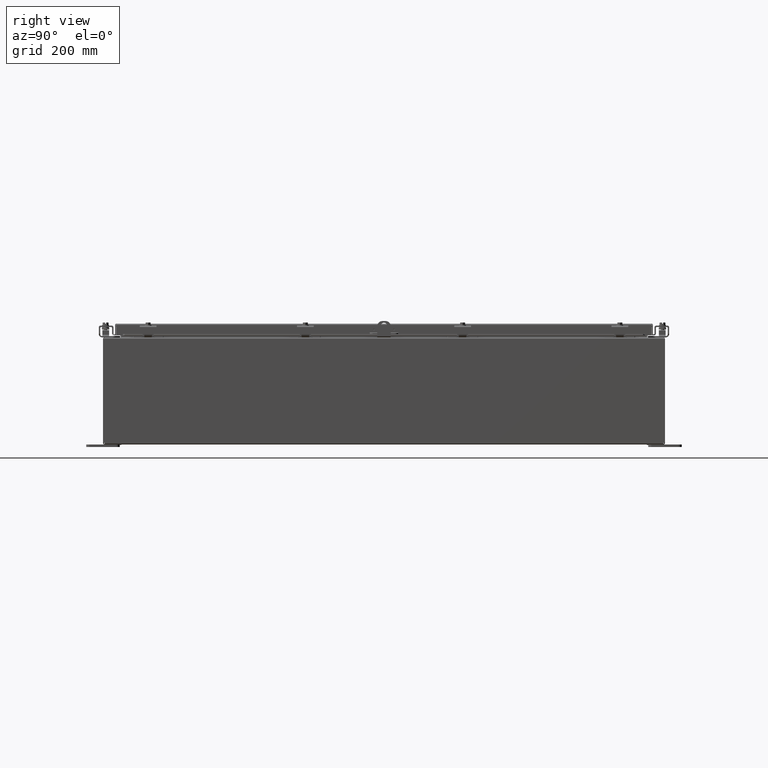
[diagram: clean part render]
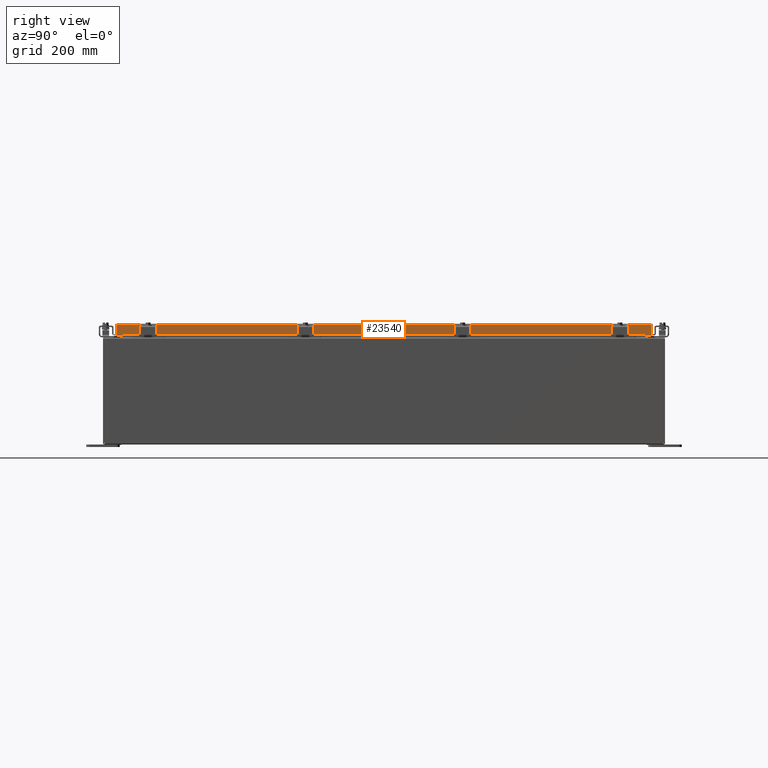
[diagram: same view with one face highlighted and labeled with its STEP entity id]
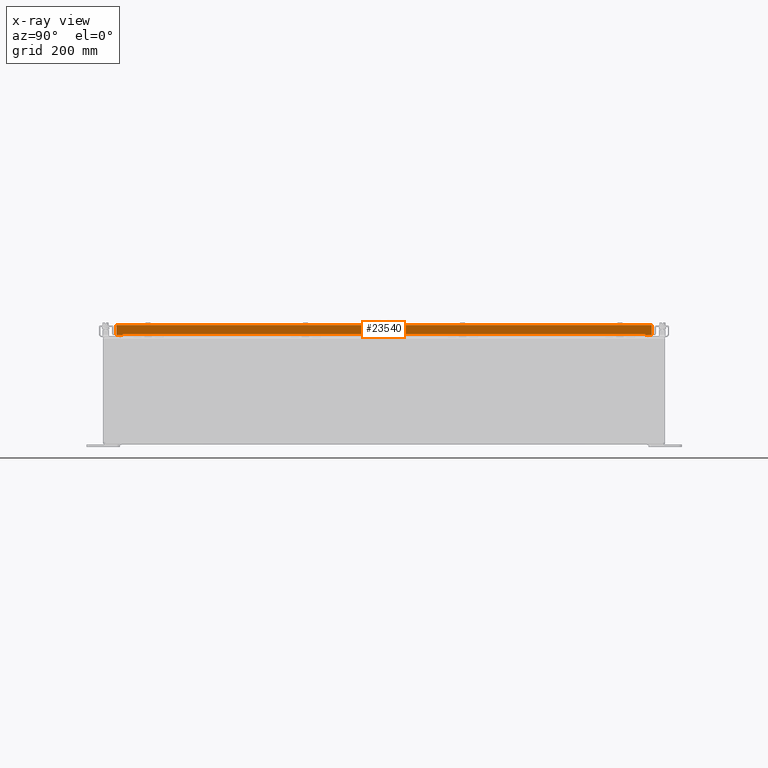
[diagram: x-ray of the same camera — body ghosted, the highlighted face saturated]
A machine part, right view. The second image highlights one B-rep face of the part: STEP entity #23540.
The next image is the same camera in x-ray: the body ghosted, the highlighted face saturated — about 0% of this face is hidden behind the body in this view.
In plain terms, the highlighted planar face has unit normal (-1, -0, -0).
Its self-contained STEP definition (entity closure, byte-faithful):
#619 = DIRECTION ( 'NONE',  ( 0.0000000000000000000, 0.0000000000000000000, -1.000000000000000000 ) ) ;
#758 = CARTESIAN_POINT ( 'NONE',  ( 14.18750000000000400, 0.8125000000000011100, 0.4975000000000010500 ) ) ;
#1664 = EDGE_CURVE ( 'NONE', #15552, #27541, #36145, .T. ) ;
#1940 = ORIENTED_EDGE ( 'NONE', *, *, #50707, .T. ) ;
#2739 = CARTESIAN_POINT ( 'NONE',  ( 14.18750000000000900, -0.8125000000000001100, 0.4975000000000010500 ) ) ;
#2927 = DIRECTION ( 'NONE',  ( 0.0000000000000000000, 1.000000000000000000, 0.0000000000000000000 ) ) ;
#3204 = VECTOR ( 'NONE', #38134, 39.37007874015748100 ) ;
#3389 = VECTOR ( 'NONE', #7504, 39.37007874015748100 ) ;
#3938 = EDGE_CURVE ( 'NONE', #18405, #5729, #57886, .T. ) ;
#4288 = EDGE_CURVE ( 'NONE', #18339, #14714, #46553, .T. ) ;
#4947 = CIRCLE ( 'NONE', #20583, 0.06249999999999995100 ) ;
#5308 = CARTESIAN_POINT ( 'NONE',  ( 14.18750000000000000, 19.50870145654396400, 0.7697499999999990500 ) ) ;
#5729 = VERTEX_POINT ( 'NONE', #25768 ) ;
#5731 = VECTOR ( 'NONE', #29632, 39.37007874015748100 ) ;
#5790 = CARTESIAN_POINT ( 'NONE',  ( 14.18750000000000400, 0.6875000000000011100, 0.4345000000000010500 ) ) ;
#5946 = DIRECTION ( 'NONE',  ( 0.0000000000000000000, 0.0000000000000000000, 1.000000000000000000 ) ) ;
#6151 = FACE_OUTER_BOUND ( 'NONE', #14471, .T. ) ;
#6536 = CARTESIAN_POINT ( 'NONE',  ( 14.18750000000000900, -19.50870145654396000, 0.7697500000000041500 ) ) ;
#6645 = CARTESIAN_POINT ( 'NONE',  ( 14.18750000000000000, 19.50870145654396400, 0.7695499999999990700 ) ) ;
#6816 = AXIS2_PLACEMENT_3D ( 'NONE', #34691, #32902, #30974 ) ;
#6976 = CARTESIAN_POINT ( 'NONE',  ( 14.18750000000000200, 19.50890145654397000, 0.8749999999999961100 ) ) ;
#7231 = LINE ( 'NONE', #24867, #5731 ) ;
#7504 = DIRECTION ( 'NONE',  ( 0.0000000000000000000, 0.0000000000000000000, -1.000000000000000000 ) ) ;
#8197 = LINE ( 'NONE', #19857, #57510 ) ;
#8470 = VECTOR ( 'NONE', #27757, 39.37007874015748100 ) ;
#8763 = LINE ( 'NONE', #10880, #55157 ) ;
#8839 = LINE ( 'NONE', #56352, #32627 ) ;
#9376 = VECTOR ( 'NONE', #12238, 39.37007874015748100 ) ;
#10880 = CARTESIAN_POINT ( 'NONE',  ( 14.18750000000000400, 0.6875000000000011100, 0.4345000000000010500 ) ) ;
#11109 = ORIENTED_EDGE ( 'NONE', *, *, #32572, .F. ) ;
#11599 = CARTESIAN_POINT ( 'NONE',  ( 14.18750000000000900, -19.50870145654396000, 0.7695500000000040600 ) ) ;
#11803 = EDGE_CURVE ( 'NONE', #49681, #18339, #43725, .T. ) ;
#11833 = VECTOR ( 'NONE', #50931, 39.37007874015748100 ) ;
#11841 = CARTESIAN_POINT ( 'NONE',  ( 14.18750000000000400, -0.8125000000000011100, 0.4345000000000010500 ) ) ;
#12210 = CARTESIAN_POINT ( 'NONE',  ( 14.18750000000000400, 0.6875000000000011100, 0.4975000000000010500 ) ) ;
#12238 = DIRECTION ( 'NONE',  ( 0.0000000000000000000, 0.0000000000000000000, -1.000000000000000000 ) ) ;
#12306 = EDGE_LOOP ( 'NONE', ( #31596, #19808, #50083, #27012 ) ) ;
#12476 = PLANE ( 'NONE',  #6816 ) ;
#12710 = LINE ( 'NONE', #11841, #25302 ) ;
#13018 = ORIENTED_EDGE ( 'NONE', *, *, #4288, .F. ) ;
#13542 = CARTESIAN_POINT ( 'NONE',  ( 14.18750000000000000, 20.00870145654396400, 0.8749999999999961100 ) ) ;
#14422 = ORIENTED_EDGE ( 'NONE', *, *, #21946, .T. ) ;
#14471 = EDGE_LOOP ( 'NONE', ( #28077, #11109, #43639, #29380, #13018, #36142, #23723, #55736, #24178, #1940, #17781, #18269 ) ) ;
#14714 = VERTEX_POINT ( 'NONE', #32790 ) ;
#14980 = CARTESIAN_POINT ( 'NONE',  ( 14.18750000000000000, 19.50890145654397000, 0.7695499999999990700 ) ) ;
#15372 = DIRECTION ( 'NONE',  ( -1.000000000000000000, 0.0000000000000000000, 0.0000000000000000000 ) ) ;
#15552 = VERTEX_POINT ( 'NONE', #26718 ) ;
#16372 = CARTESIAN_POINT ( 'NONE',  ( 14.18750000000000400, -0.6875000000000011100, 0.4975000000000010500 ) ) ;
#17175 = VERTEX_POINT ( 'NONE', #32969 ) ;
#17342 = CARTESIAN_POINT ( 'NONE',  ( 14.18750000000000000, 19.50870145654396400, 0.7697499999999981600 ) ) ;
#17781 = ORIENTED_EDGE ( 'NONE', *, *, #56773, .T. ) ;
#18106 = CARTESIAN_POINT ( 'NONE',  ( 14.18750000000000400, -0.7500000000000011100, 0.4345000000000010500 ) ) ;
#18269 = ORIENTED_EDGE ( 'NONE', *, *, #43579, .T. ) ;
#18315 = VECTOR ( 'NONE', #58538, 39.37007874015748100 ) ;
#18339 = VERTEX_POINT ( 'NONE', #13542 ) ;
#18405 = VERTEX_POINT ( 'NONE', #19078 ) ;
#18480 = CARTESIAN_POINT ( 'NONE',  ( 14.18750000000000400, 0.7500000000000001100, 0.4345000000000010500 ) ) ;
#19078 = CARTESIAN_POINT ( 'NONE',  ( 14.18750000000000900, -20.00870145654396400, 0.1052500000000015200 ) ) ;
#19353 = CARTESIAN_POINT ( 'NONE',  ( 14.18749999999999600, 20.00870145654396400, 0.8749999999999961100 ) ) ;
#19547 = DIRECTION ( 'NONE',  ( 0.0000000000000000000, -1.000000000000000000, 0.0000000000000000000 ) ) ;
#19787 = VECTOR ( 'NONE', #5946, 39.37007874015748100 ) ;
#19808 = ORIENTED_EDGE ( 'NONE', *, *, #22024, .T. ) ;
#19857 = CARTESIAN_POINT ( 'NONE',  ( 14.18750000000001200, -20.00870145654396400, 0.8750000000000041100 ) ) ;
#19891 = CARTESIAN_POINT ( 'NONE',  ( 14.18750000000000900, -0.6875000000000011100, 0.4975000000000010500 ) ) ;
#20429 = DIRECTION ( 'NONE',  ( 0.0000000000000000000, 0.0000000000000000000, 1.000000000000000000 ) ) ;
#20583 = AXIS2_PLACEMENT_3D ( 'NONE', #18106, #15372, #19547 ) ;
#20601 = EDGE_CURVE ( 'NONE', #37370, #39202, #21508, .T. ) ;
#21276 = LINE ( 'NONE', #6645, #19787 ) ;
#21450 = VERTEX_POINT ( 'NONE', #12210 ) ;
#21508 = LINE ( 'NONE', #43130, #32721 ) ;
#21584 = EDGE_CURVE ( 'NONE', #39202, #49438, #21276, .T. ) ;
#21890 = VERTEX_POINT ( 'NONE', #11599 ) ;
#21946 = EDGE_CURVE ( 'NONE', #52313, #17175, #4947, .T. ) ;
#22024 = EDGE_CURVE ( 'NONE', #21450, #15552, #48267, .T. ) ;
#23245 = DIRECTION ( 'NONE',  ( 0.0000000000000000000, -1.000000000000000000, 0.0000000000000000000 ) ) ;
#23540 = ADVANCED_FACE ( 'NONE', ( #6151, #44176, #31419 ), #12476, .F. ) ;
#23723 = ORIENTED_EDGE ( 'NONE', *, *, #24605, .T. ) ;
#24178 = ORIENTED_EDGE ( 'NONE', *, *, #21584, .T. ) ;
#24605 = EDGE_CURVE ( 'NONE', #49681, #37370, #54239, .T. ) ;
#24867 = CARTESIAN_POINT ( 'NONE',  ( 14.18750000000000900, -19.50870145654396400, 0.7695500000000040600 ) ) ;
#25302 = VECTOR ( 'NONE', #35962, 39.37007874015748100 ) ;
#25768 = CARTESIAN_POINT ( 'NONE',  ( 14.18750000000000900, -20.00870145654396400, 0.8750000000000041100 ) ) ;
#25937 = LINE ( 'NONE', #17342, #11833 ) ;
#26611 = VERTEX_POINT ( 'NONE', #6536 ) ;
#26718 = CARTESIAN_POINT ( 'NONE',  ( 14.18750000000000400, 0.8125000000000011100, 0.4975000000000010500 ) ) ;
#27012 = ORIENTED_EDGE ( 'NONE', *, *, #42916, .T. ) ;
#27541 = VERTEX_POINT ( 'NONE', #48235 ) ;
#27757 = DIRECTION ( 'NONE',  ( 0.0000000000000000000, 0.0000000000000000000, -1.000000000000000000 ) ) ;
#28077 = ORIENTED_EDGE ( 'NONE', *, *, #36778, .T. ) ;
#28579 = LINE ( 'NONE', #49191, #54250 ) ;
#29380 = ORIENTED_EDGE ( 'NONE', *, *, #54381, .T. ) ;
#29632 = DIRECTION ( 'NONE',  ( 0.0000000000000000000, -1.000000000000000000, 0.0000000000000000000 ) ) ;
#30880 = VECTOR ( 'NONE', #49705, 39.37007874015748100 ) ;
#30974 = DIRECTION ( 'NONE',  ( 0.0000000000000000000, 0.0000000000000000000, 1.000000000000000000 ) ) ;
#31302 = DIRECTION ( 'NONE',  ( -1.000000000000000000, 0.0000000000000000000, 0.0000000000000000000 ) ) ;
#31419 = FACE_BOUND ( 'NONE', #12306, .T. ) ;
#31596 = ORIENTED_EDGE ( 'NONE', *, *, #40799, .T. ) ;
#31668 = VERTEX_POINT ( 'NONE', #44278 ) ;
#32265 = EDGE_CURVE ( 'NONE', #17175, #42052, #12710, .T. ) ;
#32572 = EDGE_CURVE ( 'NONE', #5729, #37483, #8197, .T. ) ;
#32627 = VECTOR ( 'NONE', #56550, 39.37007874015748100 ) ;
#32646 = VERTEX_POINT ( 'NONE', #5790 ) ;
#32721 = VECTOR ( 'NONE', #43289, 39.37007874015748100 ) ;
#32790 = CARTESIAN_POINT ( 'NONE',  ( 14.18750000000000200, 20.00870145654396400, 0.1052500000000000100 ) ) ;
#32902 = DIRECTION ( 'NONE',  ( -1.000000000000000000, 0.0000000000000000000, 0.0000000000000000000 ) ) ;
#32927 = CARTESIAN_POINT ( 'NONE',  ( 14.18750000000001100, -19.50870145654396000, 0.7697500000000041500 ) ) ;
#32969 = CARTESIAN_POINT ( 'NONE',  ( 14.18750000000000900, -0.8125000000000011100, 0.4345000000000010500 ) ) ;
#33371 = ORIENTED_EDGE ( 'NONE', *, *, #60590, .T. ) ;
#33465 = EDGE_CURVE ( 'NONE', #59309, #52313, #34676, .T. ) ;
#34676 = LINE ( 'NONE', #16372, #9376 ) ;
#34691 = CARTESIAN_POINT ( 'NONE',  ( 14.18750000000000400, -1.540953000000000100E-016, 0.4402047769488100500 ) ) ;
#35962 = DIRECTION ( 'NONE',  ( 0.0000000000000000000, 0.0000000000000000000, 1.000000000000000000 ) ) ;
#36142 = ORIENTED_EDGE ( 'NONE', *, *, #11803, .F. ) ;
#36145 = LINE ( 'NONE', #758, #39104 ) ;
#36778 = EDGE_CURVE ( 'NONE', #31668, #37483, #28579, .T. ) ;
#37370 = VERTEX_POINT ( 'NONE', #14980 ) ;
#37483 = VERTEX_POINT ( 'NONE', #49330 ) ;
#38134 = DIRECTION ( 'NONE',  ( 0.0000000000000000000, 0.0000000000000000000, -1.000000000000000000 ) ) ;
#38799 = AXIS2_PLACEMENT_3D ( 'NONE', #18480, #52096, #23245 ) ;
#39073 = DIRECTION ( 'NONE',  ( 0.0000000000000000000, 1.000000000000000000, 0.0000000000000000000 ) ) ;
#39104 = VECTOR ( 'NONE', #619, 39.37007874015748100 ) ;
#39202 = VERTEX_POINT ( 'NONE', #56973 ) ;
#39786 = AXIS2_PLACEMENT_3D ( 'NONE', #60503, #60430, #60287 ) ;
#40799 = EDGE_CURVE ( 'NONE', #32646, #21450, #8763, .T. ) ;
#41131 = CIRCLE ( 'NONE', #54921, 0.06249999999999995100 ) ;
#42052 = VERTEX_POINT ( 'NONE', #2739 ) ;
#42916 = EDGE_CURVE ( 'NONE', #27541, #32646, #46171, .T. ) ;
#43130 = CARTESIAN_POINT ( 'NONE',  ( 14.18750000000000200, 19.50890145654397000, 0.7695499999999990700 ) ) ;
#43289 = DIRECTION ( 'NONE',  ( 0.0000000000000000000, -1.000000000000000000, 0.0000000000000000000 ) ) ;
#43579 = EDGE_CURVE ( 'NONE', #21890, #31668, #7231, .T. ) ;
#43639 = ORIENTED_EDGE ( 'NONE', *, *, #3938, .F. ) ;
#43725 = LINE ( 'NONE', #59057, #18315 ) ;
#44176 = FACE_BOUND ( 'NONE', #50003, .T. ) ;
#44278 = CARTESIAN_POINT ( 'NONE',  ( 14.18750000000000900, -19.50890145654396300, 0.7695500000000040600 ) ) ;
#46171 = CIRCLE ( 'NONE', #38799, 0.06249999999999995100 ) ;
#46553 = LINE ( 'NONE', #19353, #8470 ) ;
#48235 = CARTESIAN_POINT ( 'NONE',  ( 14.18750000000000400, 0.8125000000000001100, 0.4345000000000010500 ) ) ;
#48267 = CIRCLE ( 'NONE', #39786, 0.06249999999999995100 ) ;
#49191 = CARTESIAN_POINT ( 'NONE',  ( 14.18750000000000900, -19.50890145654396300, 0.7695500000000040600 ) ) ;
#49330 = CARTESIAN_POINT ( 'NONE',  ( 14.18750000000000900, -19.50890145654396300, 0.8750000000000021100 ) ) ;
#49419 = CARTESIAN_POINT ( 'NONE',  ( 14.18750000000000900, -20.00870145654396400, 0.1052500000000040100 ) ) ;
#49438 = VERTEX_POINT ( 'NONE', #5308 ) ;
#49681 = VERTEX_POINT ( 'NONE', #55213 ) ;
#49705 = DIRECTION ( 'NONE',  ( 0.0000000000000000000, 0.0000000000000000000, 1.000000000000000000 ) ) ;
#50003 = EDGE_LOOP ( 'NONE', ( #56250, #33371, #52588, #14422 ) ) ;
#50083 = ORIENTED_EDGE ( 'NONE', *, *, #1664, .T. ) ;
#50536 = CARTESIAN_POINT ( 'NONE',  ( 14.18750000000000900, -0.6875000000000011100, 0.4345000000000010500 ) ) ;
#50707 = EDGE_CURVE ( 'NONE', #49438, #26611, #25937, .T. ) ;
#50931 = DIRECTION ( 'NONE',  ( 0.0000000000000000000, -1.000000000000000000, 0.0000000000000000000 ) ) ;
#52096 = DIRECTION ( 'NONE',  ( -1.000000000000000000, 0.0000000000000000000, 0.0000000000000000000 ) ) ;
#52313 = VERTEX_POINT ( 'NONE', #50536 ) ;
#52552 = LINE ( 'NONE', #32927, #3204 ) ;
#52588 = ORIENTED_EDGE ( 'NONE', *, *, #33465, .T. ) ;
#54021 = DIRECTION ( 'NONE',  ( 0.0000000000000000000, 0.0000000000000000000, 1.000000000000000000 ) ) ;
#54239 = LINE ( 'NONE', #6976, #3389 ) ;
#54250 = VECTOR ( 'NONE', #20429, 39.37007874015748100 ) ;
#54381 = EDGE_CURVE ( 'NONE', #18405, #14714, #8839, .T. ) ;
#54921 = AXIS2_PLACEMENT_3D ( 'NONE', #59957, #31302, #2927 ) ;
#55157 = VECTOR ( 'NONE', #54021, 39.37007874015748100 ) ;
#55213 = CARTESIAN_POINT ( 'NONE',  ( 14.18750000000000000, 19.50890145654397000, 0.8749999999999961100 ) ) ;
#55736 = ORIENTED_EDGE ( 'NONE', *, *, #20601, .T. ) ;
#56250 = ORIENTED_EDGE ( 'NONE', *, *, #32265, .T. ) ;
#56352 = CARTESIAN_POINT ( 'NONE',  ( 14.18750000000000500, -20.00870145654396400, 0.1052499999999980100 ) ) ;
#56550 = DIRECTION ( 'NONE',  ( 0.0000000000000000000, 1.000000000000000000, 0.0000000000000000000 ) ) ;
#56773 = EDGE_CURVE ( 'NONE', #26611, #21890, #52552, .T. ) ;
#56973 = CARTESIAN_POINT ( 'NONE',  ( 14.18750000000000000, 19.50870145654396400, 0.7695499999999990700 ) ) ;
#57510 = VECTOR ( 'NONE', #39073, 39.37007874015748100 ) ;
#57886 = LINE ( 'NONE', #49419, #30880 ) ;
#58538 = DIRECTION ( 'NONE',  ( 0.0000000000000000000, 1.000000000000000000, 0.0000000000000000000 ) ) ;
#59057 = CARTESIAN_POINT ( 'NONE',  ( 14.18750000000000200, 19.50890145654397000, 0.8749999999999991100 ) ) ;
#59309 = VERTEX_POINT ( 'NONE', #19891 ) ;
#59957 = CARTESIAN_POINT ( 'NONE',  ( 14.18750000000000400, -0.7500000000000011100, 0.4975000000000010500 ) ) ;
#60287 = DIRECTION ( 'NONE',  ( 0.0000000000000000000, 1.000000000000000000, 0.0000000000000000000 ) ) ;
#60430 = DIRECTION ( 'NONE',  ( -1.000000000000000000, 0.0000000000000000000, 0.0000000000000000000 ) ) ;
#60503 = CARTESIAN_POINT ( 'NONE',  ( 14.18750000000000400, 0.7500000000000011100, 0.4975000000000010500 ) ) ;
#60590 = EDGE_CURVE ( 'NONE', #42052, #59309, #41131, .T. ) ;